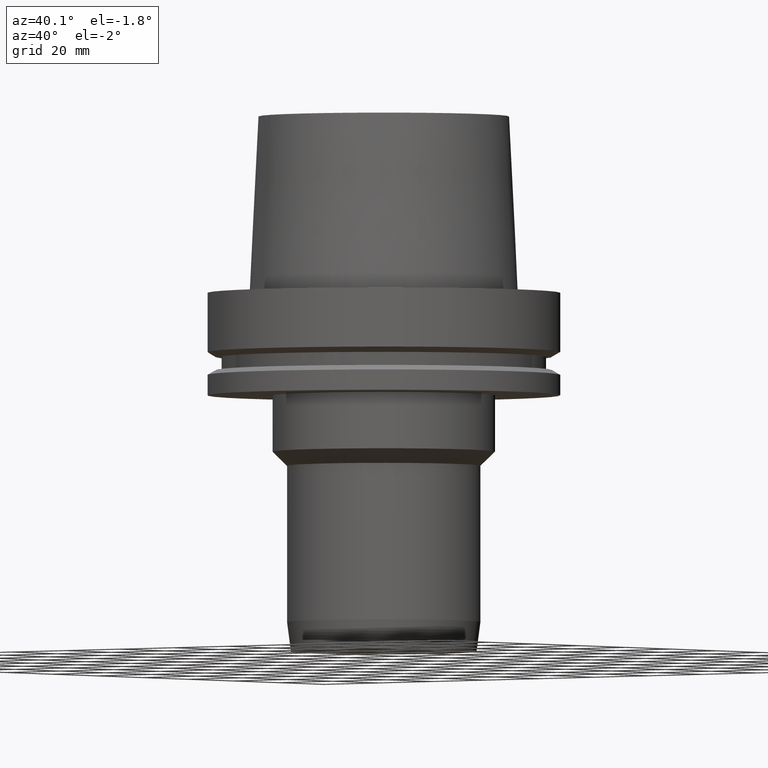
[diagram: clean part render]
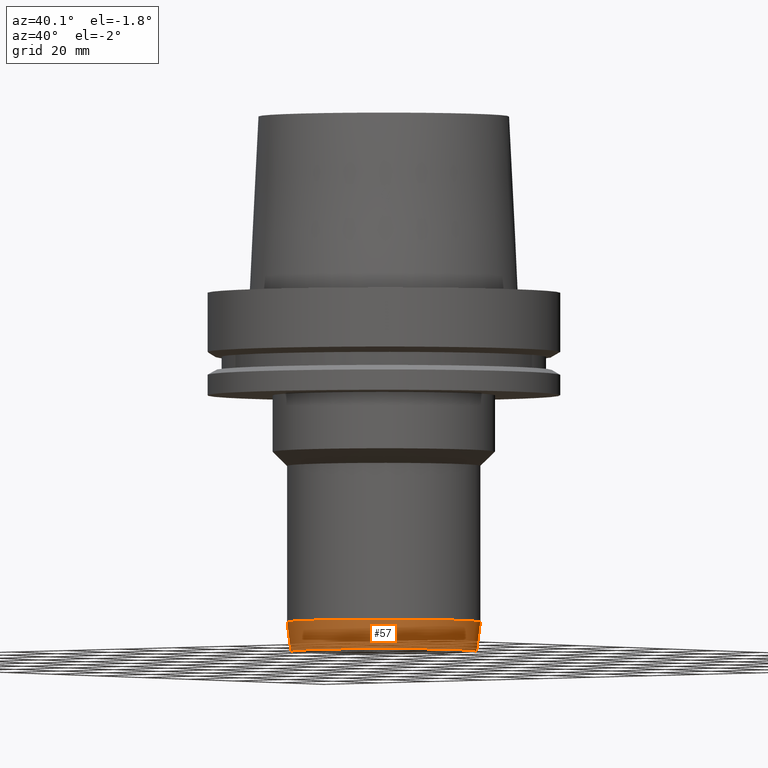
[diagram: same view with one face highlighted and labeled with its STEP entity id]
A machine part, auxiliary view. The second image highlights one B-rep face of the part: STEP entity #57.
In plain terms, the highlighted conical surface has half-angle 7.5 deg.
Its self-contained STEP definition (entity closure, byte-faithful):
#57=ADVANCED_FACE('Unnamed[1]',(#154,#155),#156,.T.);
#83=EDGE_CURVE('Unnamed[1]',#195,#195,#196,.T.);
#132=EDGE_CURVE('Unnamed[1]',#273,#273,#274,.T.);
#154=FACE_BOUND('',#287,.T.);
#155=FACE_BOUND('',#288,.T.);
#156=CONICAL_SURFACE('',#289,26.9542845478111,0.130899693899458);
#195=VERTEX_POINT('',#338);
#196=CIRCLE('',#339,27.5000000000022);
#273=VERTEX_POINT('',#436);
#274=CIRCLE('',#437,26.4085690956199);
#287=EDGE_LOOP('',(#443));
#288=EDGE_LOOP('',(#444));
#289=AXIS2_PLACEMENT_3D('',#445,#446,#447);
#338=CARTESIAN_POINT('',(5.7135748978548E-015,27.5000000000022,-93.3097592192755));
#339=AXIS2_PLACEMENT_3D('',#491,#492,#493);
#436=CARTESIAN_POINT('',(6.22120573966855E-015,26.40856909562,-101.6));
#437=AXIS2_PLACEMENT_3D('',#578,#579,#580);
#443=ORIENTED_EDGE('',*,*,#132,.F.);
#444=ORIENTED_EDGE('',*,*,#83,.T.);
#445=CARTESIAN_POINT('',(5.96739031876167E-015,1.19347806375233E-014,-97.4548796096377));
#446=DIRECTION('',(-6.12323399573677E-017,-1.22464679914752E-016,1.0));
#447=DIRECTION('',(-1.23259516440795E-032,1.0,1.22464679914752E-016));
#491=CARTESIAN_POINT('',(5.7135748978548E-015,1.14271497957096E-014,-93.3097592192755));
#492=DIRECTION('',(6.12323399573677E-017,1.22464679914732E-016,-1.0));
#493=DIRECTION('',(-1.23259516440773E-032,1.0,1.22464679914732E-016));
#578=CARTESIAN_POINT('',(6.22120573966855E-015,1.24424114793371E-014,-101.6));
#579=DIRECTION('',(6.12323399573677E-017,1.22464679914711E-016,-1.0));
#580=DIRECTION('',(-1.23259516440783E-032,1.0,1.22464679914711E-016));